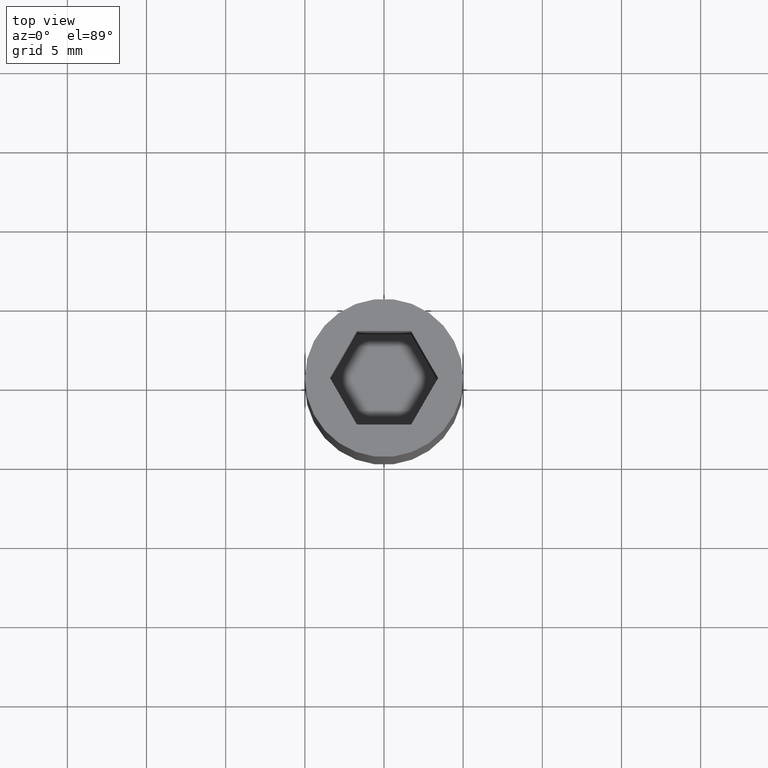
[diagram: clean part render]
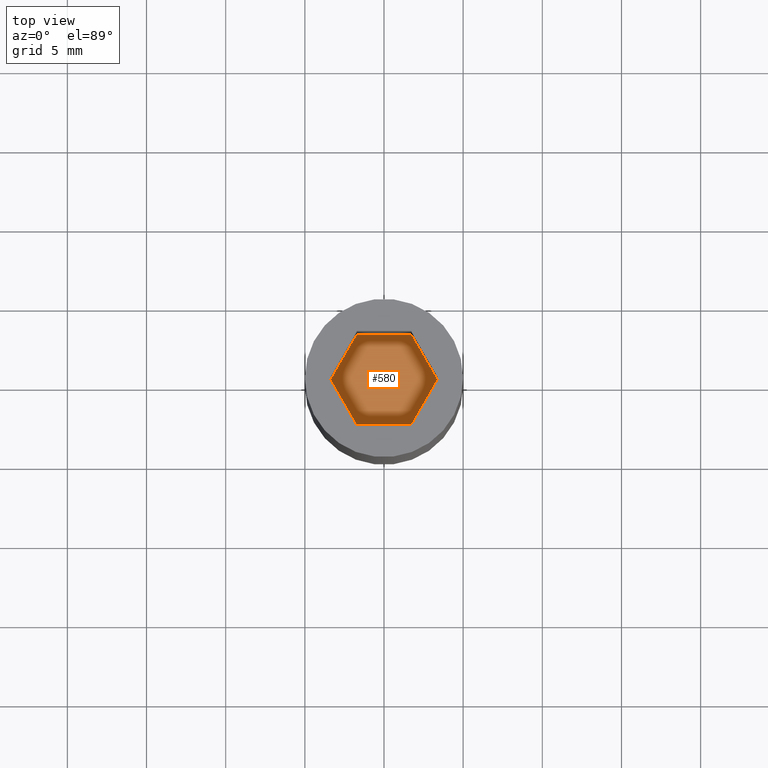
[diagram: same view with one face highlighted and labeled with its STEP entity id]
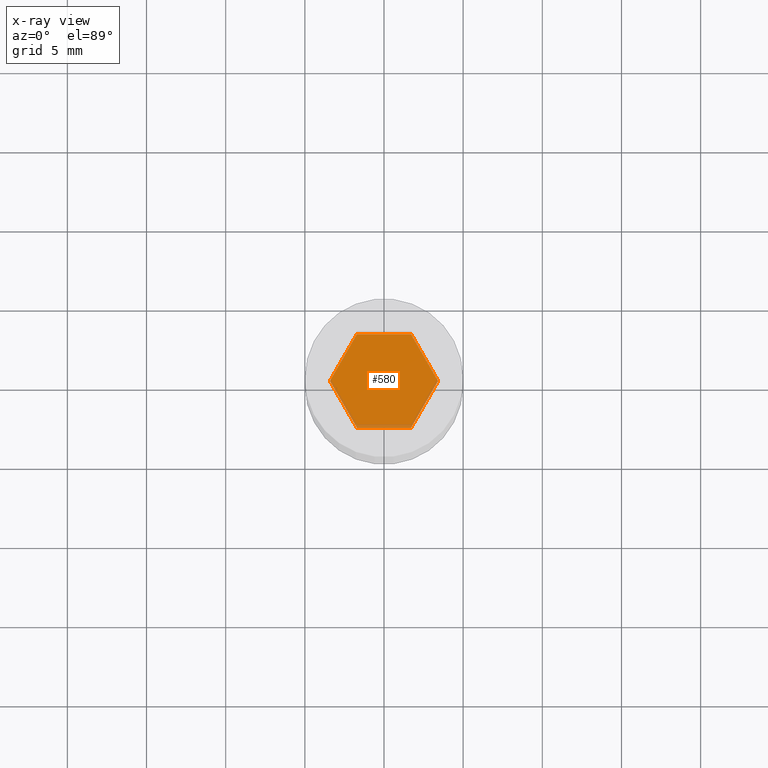
[diagram: x-ray of the same camera — body ghosted, the highlighted face saturated]
A machine part, top view. The second image highlights one B-rep face of the part: STEP entity #580.
The next image is the same camera in x-ray: the body ghosted, the highlighted face saturated — about 5% of this face is hidden behind the body in this view.
In plain terms, the highlighted planar face has unit normal (0, 0, 1).
Its self-contained STEP definition (entity closure, byte-faithful):
#428=CARTESIAN_POINT('',(3.421172276945413,0.0,16.232834198551473));
#429=VERTEX_POINT('',#428);
#437=CARTESIAN_POINT('',(1.710586138472991,2.962822102557766,16.232834198551473));
#438=VERTEX_POINT('',#437);
#445=CARTESIAN_POINT('',(3.421172276945413,0.0,16.232834198551473));
#446=DIRECTION('',(-0.499999999999939,0.866025403784474,0.0));
#447=VECTOR('',#446,3.421172276945260);
#448=LINE('',#445,#447);
#449=EDGE_CURVE('',#429,#438,#448,.T.);
#461=CARTESIAN_POINT('',(-1.710586138472536,2.962822102557766,16.232834198551473));
#462=VERTEX_POINT('',#461);
#469=CARTESIAN_POINT('',(1.710586138472991,2.962822102557766,16.232834198551473));
#470=DIRECTION('',(-1.0,0.0,0.0));
#471=VECTOR('',#470,3.421172276945526);
#472=LINE('',#469,#471);
#473=EDGE_CURVE('',#438,#462,#472,.T.);
#485=CARTESIAN_POINT('',(-3.421172276945640,0.0,16.232834198551473));
#486=VERTEX_POINT('',#485);
#493=CARTESIAN_POINT('',(-1.710586138472535,2.962822102557766,16.232834198551473));
#494=DIRECTION('',(-0.500000000000089,-0.866025403784387,0.0));
#495=VECTOR('',#494,3.421172276945601);
#496=LINE('',#493,#495);
#497=EDGE_CURVE('',#462,#486,#496,.T.);
#509=CARTESIAN_POINT('',(-1.710586138472536,-2.962822102557823,16.232834198551473));
#510=VERTEX_POINT('',#509);
#517=CARTESIAN_POINT('',(-3.421172276945641,0.0,16.232834198551473));
#518=DIRECTION('',(0.500000000000082,-0.866025403784391,0.0));
#519=VECTOR('',#518,3.421172276945650);
#520=LINE('',#517,#519);
#521=EDGE_CURVE('',#486,#510,#520,.T.);
#533=CARTESIAN_POINT('',(1.710586138472991,-2.962822102557823,16.232834198551473));
#534=VERTEX_POINT('',#533);
#541=CARTESIAN_POINT('',(-1.710586138472536,-2.962822102557823,16.232834198551473));
#542=DIRECTION('',(1.0,0.0,0.0));
#543=VECTOR('',#542,3.421172276945526);
#544=LINE('',#541,#543);
#545=EDGE_CURVE('',#510,#534,#544,.T.);
#555=CARTESIAN_POINT('',(1.710586138472990,-2.962822102557823,16.232834198551473));
#556=DIRECTION('',(0.499999999999932,0.866025403784478,0.0));
#557=VECTOR('',#556,3.421172276945309);
#558=LINE('',#555,#557);
#559=EDGE_CURVE('',#534,#429,#558,.T.);
#567=CARTESIAN_POINT('',(4.105526732343265,-3.555506523078122,16.232834198551586));
#568=DIRECTION('',(0.0,0.0,1.0));
#569=DIRECTION('',(0.0,1.0,0.0));
#570=AXIS2_PLACEMENT_3D('',#567,#568,#569);
#571=PLANE('',#570);
#572=ORIENTED_EDGE('',*,*,#449,.T.);
#573=ORIENTED_EDGE('',*,*,#473,.T.);
#574=ORIENTED_EDGE('',*,*,#497,.T.);
#575=ORIENTED_EDGE('',*,*,#521,.T.);
#576=ORIENTED_EDGE('',*,*,#545,.T.);
#577=ORIENTED_EDGE('',*,*,#559,.T.);
#578=EDGE_LOOP('',(#572,#573,#574,#575,#576,#577));
#579=FACE_OUTER_BOUND('',#578,.T.);
#580=ADVANCED_FACE('',(#579),#571,.T.);